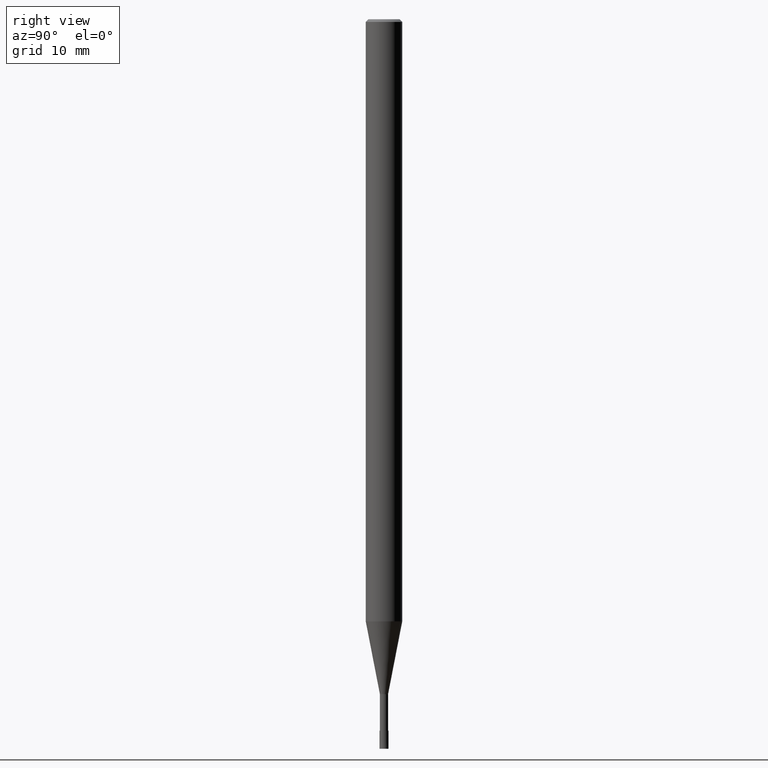
[diagram: clean part render]
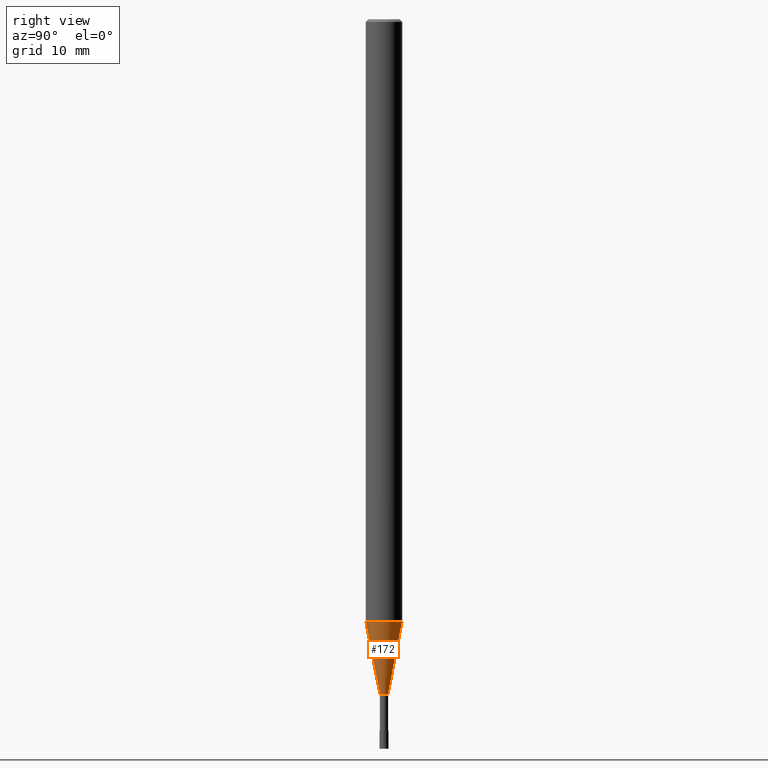
[diagram: same view with one face highlighted and labeled with its STEP entity id]
A machine part, right view. The second image highlights one B-rep face of the part: STEP entity #172.
In plain terms, the highlighted conical surface has half-angle 11 deg.
Its self-contained STEP definition (entity closure, byte-faithful):
#112=VERTEX_POINT('',#253);
#120=EDGE_CURVE('',#140,#152,#261,.T.);
#130=EDGE_CURVE('',#140,#112,#273,.T.);
#132=VERTEX_POINT('',#275);
#136=EDGE_CURVE('',#152,#132,#279,.T.);
#140=VERTEX_POINT('',#284);
#152=VERTEX_POINT('',#297);
#170=EDGE_CURVE('',#132,#112,#316,.T.);
#172=ADVANCED_FACE('',(#318),#319,.T.);
#253=CARTESIAN_POINT('',(2.44915147732706E-016,-1.99995,-66.026));
#261=LINE('',#417,#418);
#273=CIRCLE('',#433,1.99995);
#275=CARTESIAN_POINT('',(5.51011628902379E-017,-0.44995,-74.0));
#279=CIRCLE('',#440,0.44995);
#284=CARTESIAN_POINT('',(0.0,1.99995,-66.026));
#297=CARTESIAN_POINT('',(0.0,0.44995,-74.0));
#316=LINE('',#487,#488);
#318=FACE_OUTER_BOUND('',#490,.T.);
#319=CONICAL_SURFACE('',#491,1.22495,0.191987597119561);
#417=CARTESIAN_POINT('',(-1.50008155311472E-016,1.22495,-70.013));
#418=VECTOR('',#592,1.0);
#433=AXIS2_PLACEMENT_3D('',#613,#614,#615);
#440=AXIS2_PLACEMENT_3D('',#616,#617,#618);
#487=CARTESIAN_POINT('',(1.50008155311472E-016,-1.22495,-70.013));
#488=VECTOR('',#658,1.0);
#490=EDGE_LOOP('',(#660,#661,#662,#663));
#491=AXIS2_PLACEMENT_3D('',#664,#665,#666);
#592=DIRECTION('',(2.3366756629082E-017,-0.190810349433081,-0.981626920244767));
#613=CARTESIAN_POINT('',(0.0,0.0,-66.026));
#614=DIRECTION('',(0.0,0.0,-1.0));
#615=DIRECTION('',(0.0,1.0,0.0));
#616=CARTESIAN_POINT('',(0.0,0.0,-74.0));
#617=DIRECTION('',(0.0,0.0,-1.0));
#618=DIRECTION('',(0.0,1.0,0.0));
#658=DIRECTION('',(2.3366756629082E-017,-0.190810349433081,0.981626920244767));
#660=ORIENTED_EDGE('',*,*,#120,.F.);
#661=ORIENTED_EDGE('',*,*,#130,.T.);
#662=ORIENTED_EDGE('',*,*,#170,.F.);
#663=ORIENTED_EDGE('',*,*,#136,.F.);
#664=CARTESIAN_POINT('',(0.0,0.0,-70.013));
#665=DIRECTION('',(-0.0,-0.0,1.0));
#666=DIRECTION('',(0.0,1.0,0.0));